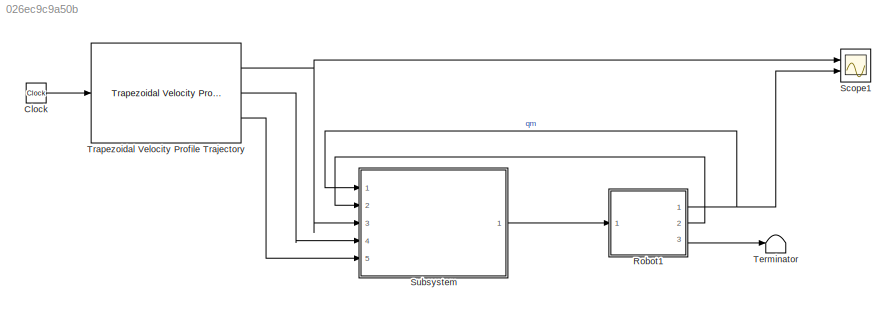
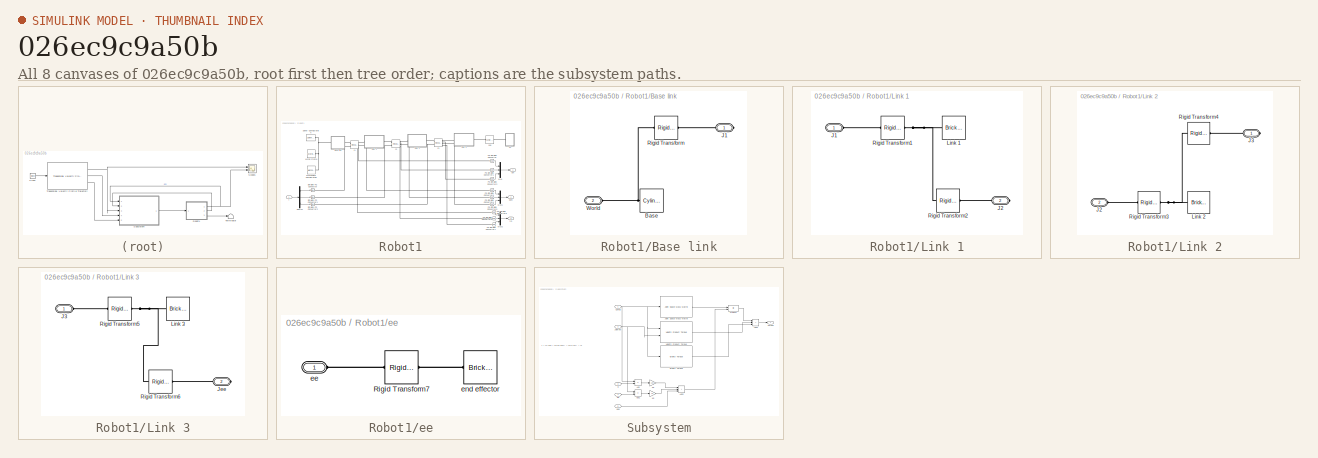
[diagram: thumbnail index - all 8 canvases of the model, root first then tree order]
MODEL slx_026ec9c9a50b
KIND model
CONFIG AbsTol = auto
CONFIG EnableMultiTasking = off
CONFIG FixedStep = auto
CONFIG MaxStep = auto
CONFIG MinStep = auto
CONFIG RelTol = 1e-3
CONFIG SampleTimeConstraint = Unconstrained
CONFIG SolverName = VariableStepAuto
CONFIG StartTime = 0.0
CONFIG StopTime = 10
BLOCK [Clock] Clock
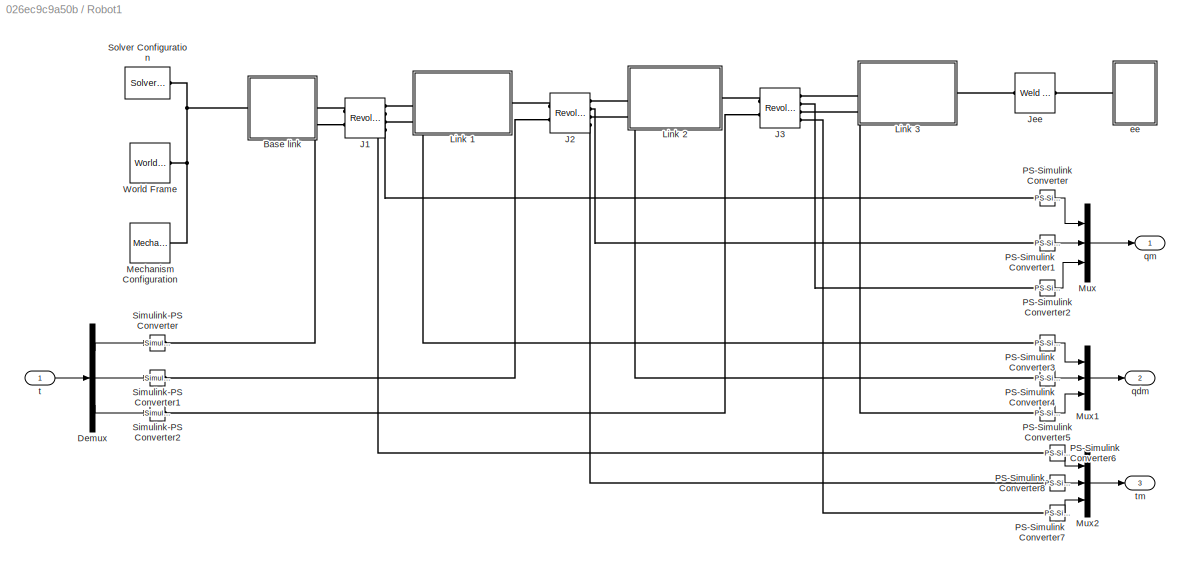
BLOCK [SubSystem] Robot1
  Ports = [1, 3]
  RequestExecContextInheritance = off
BLOCK [SubSystem] Robot1/Base link
  Ports = [0, 0, 0, 0, 0, 1, 1]
  RequestExecContextInheritance = off
BLOCK [Reference] Robot1/Base link/Base  REF=sm_lib/Body Elements/Cylindrical Solid
  NameLocation = top
  Ports = [0, 0, 0, 0, 0, 0, 1]
  SourceBlock = sm_lib/Body Elements/Cylindrical Solid
  SourceProductBaseCode = MS
  SourceType = Cylindrical Solid
BLOCK [PMIOPort] Robot1/Base link/J1
  Side = Right
BLOCK [Reference] Robot1/Base link/Rigid Transform  REF=sm_lib/Frames and
Transforms/Rigid
Transform
  Ports = [0, 0, 0, 0, 0, 1, 1]
  SourceBlock = sm_lib/Frames and\nTransforms/Rigid\nTransform
  SourceProductBaseCode = MS
  SourceType = Rigid\nTransform
BLOCK [PMIOPort] Robot1/Base link/World
  Port = 2
  Side = Left
BLOCK [Demux] Robot1/Demux
  Outputs = 3
  Ports = [1, 3]
BLOCK [Reference] Robot1/J1  REF=sm_lib/Joints/Revolute Joint
  Ports = [0, 0, 0, 0, 0, 2, 4]
  SourceBlock = sm_lib/Joints/Revolute Joint
  SourceProductBaseCode = MS
  SourceType = Revolute Joint
BLOCK [Reference] Robot1/J2  REF=sm_lib/Joints/Revolute Joint
  Ports = [0, 0, 0, 0, 0, 2, 4]
  SourceBlock = sm_lib/Joints/Revolute Joint
  SourceProductBaseCode = MS
  SourceType = Revolute Joint
BLOCK [Reference] Robot1/J3  REF=sm_lib/Joints/Revolute Joint
  Ports = [0, 0, 0, 0, 0, 2, 4]
  SourceBlock = sm_lib/Joints/Revolute Joint
  SourceProductBaseCode = MS
  SourceType = Revolute Joint
BLOCK [Reference] Robot1/Jee  REF=sm_lib/Joints/Weld Joint
  Ports = [0, 0, 0, 0, 0, 1, 1]
  SourceBlock = sm_lib/Joints/Weld Joint
  SourceProductBaseCode = MS
  SourceType = Weld Joint
BLOCK [SubSystem] Robot1/Link 1
  Ports = [0, 0, 0, 0, 0, 1, 1]
  RequestExecContextInheritance = off
BLOCK [PMIOPort] Robot1/Link 1/J1
  Side = Left
BLOCK [PMIOPort] Robot1/Link 1/J2
  Port = 2
  Side = Right
BLOCK [Reference] Robot1/Link 1/Link 1  REF=sm_lib/Body Elements/Brick Solid
  NameLocation = top
  Ports = [0, 0, 0, 0, 0, 0, 1]
  SourceBlock = sm_lib/Body Elements/Brick Solid
  SourceProductBaseCode = MS
  SourceType = Brick Solid
BLOCK [Reference] Robot1/Link 1/Rigid Transform1  REF=sm_lib/Frames and
Transforms/Rigid
Transform
  Ports = [0, 0, 0, 0, 0, 1, 1]
  SourceBlock = sm_lib/Frames and\nTransforms/Rigid\nTransform
  SourceProductBaseCode = MS
  SourceType = Rigid\nTransform
BLOCK [Reference] Robot1/Link 1/Rigid Transform2  REF=sm_lib/Frames and
Transforms/Rigid
Transform
  Ports = [0, 0, 0, 0, 0, 1, 1]
  SourceBlock = sm_lib/Frames and\nTransforms/Rigid\nTransform
  SourceProductBaseCode = MS
  SourceType = Rigid\nTransform
BLOCK [SubSystem] Robot1/Link 2
  Ports = [0, 0, 0, 0, 0, 1, 1]
  RequestExecContextInheritance = off
BLOCK [PMIOPort] Robot1/Link 2/J2
  Port = 2
  Side = Left
BLOCK [PMIOPort] Robot1/Link 2/J3
  Side = Right
BLOCK [Reference] Robot1/Link 2/Link 2  REF=sm_lib/Body Elements/Brick Solid
  NameLocation = top
  Ports = [0, 0, 0, 0, 0, 0, 1]
  SourceBlock = sm_lib/Body Elements/Brick Solid
  SourceProductBaseCode = MS
  SourceType = Brick Solid
BLOCK [Reference] Robot1/Link 2/Rigid Transform3  REF=sm_lib/Frames and
Transforms/Rigid
Transform
  Ports = [0, 0, 0, 0, 0, 1, 1]
  SourceBlock = sm_lib/Frames and\nTransforms/Rigid\nTransform
  SourceProductBaseCode = MS
  SourceType = Rigid\nTransform
BLOCK [Reference] Robot1/Link 2/Rigid Transform4  REF=sm_lib/Frames and
Transforms/Rigid
Transform
  Ports = [0, 0, 0, 0, 0, 1, 1]
  SourceBlock = sm_lib/Frames and\nTransforms/Rigid\nTransform
  SourceProductBaseCode = MS
  SourceType = Rigid\nTransform
BLOCK [SubSystem] Robot1/Link 3
  Ports = [0, 0, 0, 0, 0, 1, 1]
  RequestExecContextInheritance = off
BLOCK [PMIOPort] Robot1/Link 3/J3
  Side = Left
BLOCK [PMIOPort] Robot1/Link 3/Jee
  Port = 2
  Side = Right
BLOCK [Reference] Robot1/Link 3/Link 3  REF=sm_lib/Body Elements/Brick Solid
  NameLocation = top
  Ports = [0, 0, 0, 0, 0, 0, 1]
  SourceBlock = sm_lib/Body Elements/Brick Solid
  SourceProductBaseCode = MS
  SourceType = Brick Solid
BLOCK [Reference] Robot1/Link 3/Rigid Transform5  REF=sm_lib/Frames and
Transforms/Rigid
Transform
  Ports = [0, 0, 0, 0, 0, 1, 1]
  SourceBlock = sm_lib/Frames and\nTransforms/Rigid\nTransform
  SourceProductBaseCode = MS
  SourceType = Rigid\nTransform
BLOCK [Reference] Robot1/Link 3/Rigid Transform6  REF=sm_lib/Frames and
Transforms/Rigid
Transform
  Ports = [0, 0, 0, 0, 0, 1, 1]
  SourceBlock = sm_lib/Frames and\nTransforms/Rigid\nTransform
  SourceProductBaseCode = MS
  SourceType = Rigid\nTransform
BLOCK [Reference] Robot1/Mechanism Configuration  REF=sm_lib/Utilities/Mechanism
Configuration
  Ports = [0, 0, 0, 0, 0, 0, 1]
  SourceBlock = sm_lib/Utilities/Mechanism\nConfiguration
  SourceProductBaseCode = MS
  SourceType = Mechanism\nConfiguration
BLOCK [Mux] Robot1/Mux
  DisplayOption = bar
  Inputs = 3
  Ports = [3, 1]
BLOCK [Mux] Robot1/Mux1
  DisplayOption = bar
  Inputs = 3
  Ports = [3, 1]
BLOCK [Mux] Robot1/Mux2
  DisplayOption = bar
  Inputs = 3
  Ports = [3, 1]
BLOCK [Reference] Robot1/PS-Simulink Converter  REF=nesl_utility/PS-Simulink
Converter
  Ports = [0, 1, 0, 0, 0, 1]
  SourceBlock = nesl_utility/PS-Simulink\nConverter
  SourceProductBaseCode = PW,SS
  SourceType = PS-Simulink\nConverter
BLOCK [Reference] Robot1/PS-Simulink Converter1  REF=nesl_utility/PS-Simulink
Converter
  Ports = [0, 1, 0, 0, 0, 1]
  SourceBlock = nesl_utility/PS-Simulink\nConverter
  SourceProductBaseCode = PW,SS
  SourceType = PS-Simulink\nConverter
BLOCK [Reference] Robot1/PS-Simulink Converter2  REF=nesl_utility/PS-Simulink
Converter
  Ports = [0, 1, 0, 0, 0, 1]
  SourceBlock = nesl_utility/PS-Simulink\nConverter
  SourceProductBaseCode = PW,SS
  SourceType = PS-Simulink\nConverter
BLOCK [Reference] Robot1/PS-Simulink Converter3  REF=nesl_utility/PS-Simulink
Converter
  Ports = [0, 1, 0, 0, 0, 1]
  SourceBlock = nesl_utility/PS-Simulink\nConverter
  SourceProductBaseCode = PW,SS
  SourceType = PS-Simulink\nConverter
BLOCK [Reference] Robot1/PS-Simulink Converter4  REF=nesl_utility/PS-Simulink
Converter
  Ports = [0, 1, 0, 0, 0, 1]
  SourceBlock = nesl_utility/PS-Simulink\nConverter
  SourceProductBaseCode = PW,SS
  SourceType = PS-Simulink\nConverter
BLOCK [Reference] Robot1/PS-Simulink Converter5  REF=nesl_utility/PS-Simulink
Converter
  Ports = [0, 1, 0, 0, 0, 1]
  SourceBlock = nesl_utility/PS-Simulink\nConverter
  SourceProductBaseCode = PW,SS
  SourceType = PS-Simulink\nConverter
BLOCK [Reference] Robot1/PS-Simulink Converter6  REF=nesl_utility/PS-Simulink
Converter
  Ports = [0, 1, 0, 0, 0, 1]
  SourceBlock = nesl_utility/PS-Simulink\nConverter
  SourceProductBaseCode = PW,SS
  SourceType = PS-Simulink\nConverter
BLOCK [Reference] Robot1/PS-Simulink Converter7  REF=nesl_utility/PS-Simulink
Converter
  Ports = [0, 1, 0, 0, 0, 1]
  SourceBlock = nesl_utility/PS-Simulink\nConverter
  SourceProductBaseCode = PW,SS
  SourceType = PS-Simulink\nConverter
BLOCK [Reference] Robot1/PS-Simulink Converter8  REF=nesl_utility/PS-Simulink
Converter
  Ports = [0, 1, 0, 0, 0, 1]
  SourceBlock = nesl_utility/PS-Simulink\nConverter
  SourceProductBaseCode = PW,SS
  SourceType = PS-Simulink\nConverter
BLOCK [Reference] Robot1/Simulink-PS Converter  REF=nesl_utility/Simulink-PS
Converter
  Ports = [1, 0, 0, 0, 0, 0, 1]
  SourceBlock = nesl_utility/Simulink-PS\nConverter
  SourceProductBaseCode = PW,SS
  SourceType = Simulink-PS\nConverter
BLOCK [Reference] Robot1/Simulink-PS Converter1  REF=nesl_utility/Simulink-PS
Converter
  Ports = [1, 0, 0, 0, 0, 0, 1]
  SourceBlock = nesl_utility/Simulink-PS\nConverter
  SourceProductBaseCode = PW,SS
  SourceType = Simulink-PS\nConverter
BLOCK [Reference] Robot1/Simulink-PS Converter2  REF=nesl_utility/Simulink-PS
Converter
  Ports = [1, 0, 0, 0, 0, 0, 1]
  SourceBlock = nesl_utility/Simulink-PS\nConverter
  SourceProductBaseCode = PW,SS
  SourceType = Simulink-PS\nConverter
BLOCK [Reference] Robot1/Solver Configuration  REF=nesl_utility/Solver
Configuration
  Ports = [0, 0, 0, 0, 0, 0, 1]
  SourceBlock = nesl_utility/Solver\nConfiguration
  SourceProductBaseCode = PW,SS
  SourceType = Solver\nConfiguration
BLOCK [Reference] Robot1/World Frame  REF=sm_lib/Frames and
Transforms/World Frame
  Ports = [0, 0, 0, 0, 0, 0, 1]
  SourceBlock = sm_lib/Frames and\nTransforms/World Frame
  SourceProductBaseCode = MS
  SourceType = World Frame
BLOCK [SubSystem] Robot1/ee
  Ports = [0, 0, 0, 0, 0, 1]
  RequestExecContextInheritance = off
BLOCK [Reference] Robot1/ee/Rigid Transform7  REF=sm_lib/Frames and
Transforms/Rigid
Transform
  Ports = [0, 0, 0, 0, 0, 1, 1]
  SourceBlock = sm_lib/Frames and\nTransforms/Rigid\nTransform
  SourceProductBaseCode = MS
  SourceType = Rigid\nTransform
BLOCK [PMIOPort] Robot1/ee/ee
  Side = Left
BLOCK [Reference] Robot1/ee/end effector  REF=sm_lib/Body Elements/Brick Solid
  NameLocation = top
  Ports = [0, 0, 0, 0, 0, 0, 1]
  SourceBlock = sm_lib/Body Elements/Brick Solid
  SourceProductBaseCode = MS
  SourceType = Brick Solid
BLOCK [Outport] Robot1/qdm
  Port = 2
BLOCK [Outport] Robot1/qm
BLOCK [Inport] Robot1/t
BLOCK [Outport] Robot1/tm
  Port = 3
BLOCK [Scope] Scope1
  Floating = off
  NumInputPorts = 2
  Ports = [2]
  ScopeSpecificationString = Simulink.scopes.TimeScopeBlockCfg('CurrentConfiguration', extmgr.ConfigurationSet(extmgr.Configuration('Core','General UI',true),extmgr.Configuration('Core','Source UI',true),extmgr.Configuration('Sources','WiredSimulink',true,'DataLoggingVariableName','ScopeData1'),extmgr.Configuration('Visuals','Time Domain',true,'SerializedDisplays',{struct('MinYLimReal','-0.04299','MaxYLimReal','0.38097','YLab...<+2245ch>
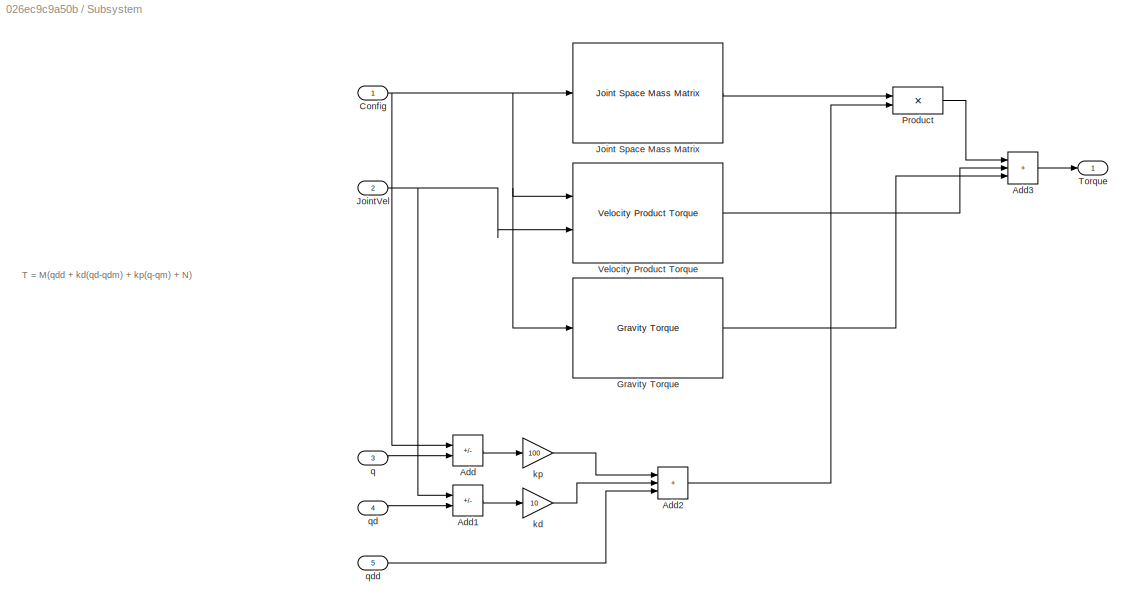
BLOCK [SubSystem] Subsystem
  Ports = [5, 1]
  RequestExecContextInheritance = off
BLOCK [Sum] Subsystem/Add
  IconShape = rectangular
  Inputs = -+
  Ports = [2, 1]
BLOCK [Sum] Subsystem/Add1
  IconShape = rectangular
  Inputs = -+
  Ports = [2, 1]
BLOCK [Sum] Subsystem/Add2
  IconShape = rectangular
  Inputs = +++
  Ports = [3, 1]
BLOCK [Sum] Subsystem/Add3
  IconShape = rectangular
  Inputs = +++
  Ports = [3, 1]
BLOCK [Inport] Subsystem/Config
BLOCK [Reference] Subsystem/Gravity Torque  REF=robotmaniplib/Gravity Torque
  Ports = [1, 1]
  SourceBlock = robotmaniplib/Gravity Torque
  SourceProductBaseCode = RO
  SourceType = Gravity Torque
BLOCK [Reference] Subsystem/Joint Space Mass Matrix  REF=robotmaniplib/Joint Space Mass Matrix
  Ports = [1, 1]
  SourceBlock = robotmaniplib/Joint Space Mass Matrix
  SourceProductBaseCode = RO
  SourceType = Joint Space Mass Matrix
BLOCK [Inport] Subsystem/JointVel
  Port = 2
BLOCK [Product] Subsystem/Product
  Multiplication = Matrix(*)
  Ports = [2, 1]
BLOCK [Outport] Subsystem/Torque
BLOCK [Reference] Subsystem/Velocity Product Torque  REF=robotmaniplib/Velocity Product Torque
  Ports = [2, 1]
  SourceBlock = robotmaniplib/Velocity Product Torque
  SourceProductBaseCode = RO
  SourceType = Velocity Product Torque
BLOCK [Gain] Subsystem/kd
  Gain = 10
BLOCK [Gain] Subsystem/kp
  Gain = 100
BLOCK [Inport] Subsystem/q
  Port = 3
BLOCK [Inport] Subsystem/qd
  Port = 4
BLOCK [Inport] Subsystem/qdd
  Port = 5
BLOCK [Terminator] Terminator
BLOCK [Reference] Trapezoidal Velocity Profile Trajectory  REF=robotcorelib/Trapezoidal Velocity Profile Trajectory
  Ports = [1, 3]
  SourceBlock = robotcorelib/Trapezoidal Velocity Profile Trajectory
  SourceProductBaseCode = NV,RO,RR,UV
  SourceType = robotics.slcore.internal.block.TrapVelTrajSys
ANNOTATION Subsystem: T = M(qdd + kd(qd-qdm) + kp(q-qm) + N)
LINE Clock:1 -> Trapezoidal Velocity Profile Trajectory:1
LINE Robot1/Demux:1 -> Robot1/Simulink-PS Converter:1
LINE Robot1/Demux:2 -> Robot1/Simulink-PS Converter1:1
LINE Robot1/Demux:3 -> Robot1/Simulink-PS Converter2:1
LINE Robot1/Mux1:1 -> Robot1/qdm:1
LINE Robot1/Mux2:1 -> Robot1/tm:1
LINE Robot1/Mux:1 -> Robot1/qm:1
LINE Robot1/PS-Simulink Converter1:1 -> Robot1/Mux:2
LINE Robot1/PS-Simulink Converter2:1 -> Robot1/Mux:3
LINE Robot1/PS-Simulink Converter3:1 -> Robot1/Mux1:1
LINE Robot1/PS-Simulink Converter4:1 -> Robot1/Mux1:2
LINE Robot1/PS-Simulink Converter5:1 -> Robot1/Mux1:3
LINE Robot1/PS-Simulink Converter6:1 -> Robot1/Mux2:1
LINE Robot1/PS-Simulink Converter7:1 -> Robot1/Mux2:3
LINE Robot1/PS-Simulink Converter8:1 -> Robot1/Mux2:2
LINE Robot1/PS-Simulink Converter:1 -> Robot1/Mux:1
LINE Robot1/t:1 -> Robot1/Demux:1
NET Robot1:1 -> Scope1:2, Subsystem:1
LINE Robot1:2 -> Subsystem:2
LINE Robot1:3 -> Terminator:1
LINE Subsystem/Add1:1 -> Subsystem/kd:1
LINE Subsystem/Add2:1 -> Subsystem/Product:2
LINE Subsystem/Add3:1 -> Subsystem/Torque:1
LINE Subsystem/Add:1 -> Subsystem/kp:1
NET Subsystem/Config:1 -> Subsystem/Add:1, Subsystem/Gravity Torque:1, Subsystem/Joint Space Mass Matrix:1, Subsystem/Velocity Product Torque:1
LINE Subsystem/Gravity Torque:1 -> Subsystem/Add3:3
LINE Subsystem/Joint Space Mass Matrix:1 -> Subsystem/Product:1
NET Subsystem/JointVel:1 -> Subsystem/Add1:1, Subsystem/Velocity Product Torque:2
LINE Subsystem/Product:1 -> Subsystem/Add3:1
LINE Subsystem/Velocity Product Torque:1 -> Subsystem/Add3:2
LINE Subsystem/kd:1 -> Subsystem/Add2:2
LINE Subsystem/kp:1 -> Subsystem/Add2:1
LINE Subsystem/q:1 -> Subsystem/Add:2
LINE Subsystem/qd:1 -> Subsystem/Add1:2
LINE Subsystem/qdd:1 -> Subsystem/Add2:3
LINE Subsystem:1 -> Robot1:1
NET Trapezoidal Velocity Profile Trajectory:1 -> Scope1:1, Subsystem:3
LINE Trapezoidal Velocity Profile Trajectory:2 -> Subsystem:4
LINE Trapezoidal Velocity Profile Trajectory:3 -> Subsystem:5
PNET net1: Robot1/Base link/Base:RConn1 -- Robot1/Base link/Rigid Transform:LConn1 -- Robot1/Base link/World:RConn1
PLINE Robot1/Base link/J1:RConn1 -- Robot1/Base link/Rigid Transform:RConn1
PNET net2: Robot1/Base link:LConn1 -- Robot1/Mechanism Configuration:RConn1 -- Robot1/Solver Configuration:RConn1 -- Robot1/World Frame:RConn1
PLINE Robot1/Base link:RConn1 -- Robot1/J1:LConn1
PLINE Robot1/J1:LConn2 -- Robot1/Simulink-PS Converter:RConn1
PLINE Robot1/J1:RConn1 -- Robot1/Link 1:LConn1
PLINE Robot1/J1:RConn2 -- Robot1/PS-Simulink Converter:LConn1
PLINE Robot1/J1:RConn3 -- Robot1/PS-Simulink Converter3:LConn1
PLINE Robot1/J1:RConn4 -- Robot1/PS-Simulink Converter6:LConn1
PLINE Robot1/J2:LConn1 -- Robot1/Link 1:RConn1
PLINE Robot1/J2:LConn2 -- Robot1/Simulink-PS Converter1:RConn1
PLINE Robot1/J2:RConn1 -- Robot1/Link 2:LConn1
PLINE Robot1/J2:RConn2 -- Robot1/PS-Simulink Converter1:LConn1
PLINE Robot1/J2:RConn3 -- Robot1/PS-Simulink Converter4:LConn1
PLINE Robot1/J2:RConn4 -- Robot1/PS-Simulink Converter8:LConn1
PLINE Robot1/J3:LConn1 -- Robot1/Link 2:RConn1
PLINE Robot1/J3:LConn2 -- Robot1/Simulink-PS Converter2:RConn1
PLINE Robot1/J3:RConn1 -- Robot1/Link 3:LConn1
PLINE Robot1/J3:RConn2 -- Robot1/PS-Simulink Converter2:LConn1
PLINE Robot1/J3:RConn3 -- Robot1/PS-Simulink Converter5:LConn1
PLINE Robot1/J3:RConn4 -- Robot1/PS-Simulink Converter7:LConn1
PLINE Robot1/Jee:LConn1 -- Robot1/Link 3:RConn1
PLINE Robot1/Jee:RConn1 -- Robot1/ee:LConn1
PLINE Robot1/Link 1/J1:RConn1 -- Robot1/Link 1/Rigid Transform1:LConn1
PLINE Robot1/Link 1/J2:RConn1 -- Robot1/Link 1/Rigid Transform2:RConn1
PNET net3: Robot1/Link 1/Link 1:RConn1 -- Robot1/Link 1/Rigid Transform1:RConn1 -- Robot1/Link 1/Rigid Transform2:LConn1
PLINE Robot1/Link 2/J2:RConn1 -- Robot1/Link 2/Rigid Transform3:LConn1
PLINE Robot1/Link 2/J3:RConn1 -- Robot1/Link 2/Rigid Transform4:RConn1
PNET net4: Robot1/Link 2/Link 2:RConn1 -- Robot1/Link 2/Rigid Transform3:RConn1 -- Robot1/Link 2/Rigid Transform4:LConn1
PLINE Robot1/Link 3/J3:RConn1 -- Robot1/Link 3/Rigid Transform5:LConn1
PLINE Robot1/Link 3/Jee:RConn1 -- Robot1/Link 3/Rigid Transform6:RConn1
PNET net5: Robot1/Link 3/Link 3:RConn1 -- Robot1/Link 3/Rigid Transform5:RConn1 -- Robot1/Link 3/Rigid Transform6:LConn1
PLINE Robot1/ee/Rigid Transform7:LConn1 -- Robot1/ee/ee:RConn1
PLINE Robot1/ee/Rigid Transform7:RConn1 -- Robot1/ee/end effector:RConn1
note: NET lines group one-source signal fan-out (src -> all destinations, sorted); 1:1 wires keep LINE; PNET lines group multi-terminal physical nets as a canonical sorted terminal list (undirected conserving connections); 2-terminal nets keep the pairwise PLINE form
